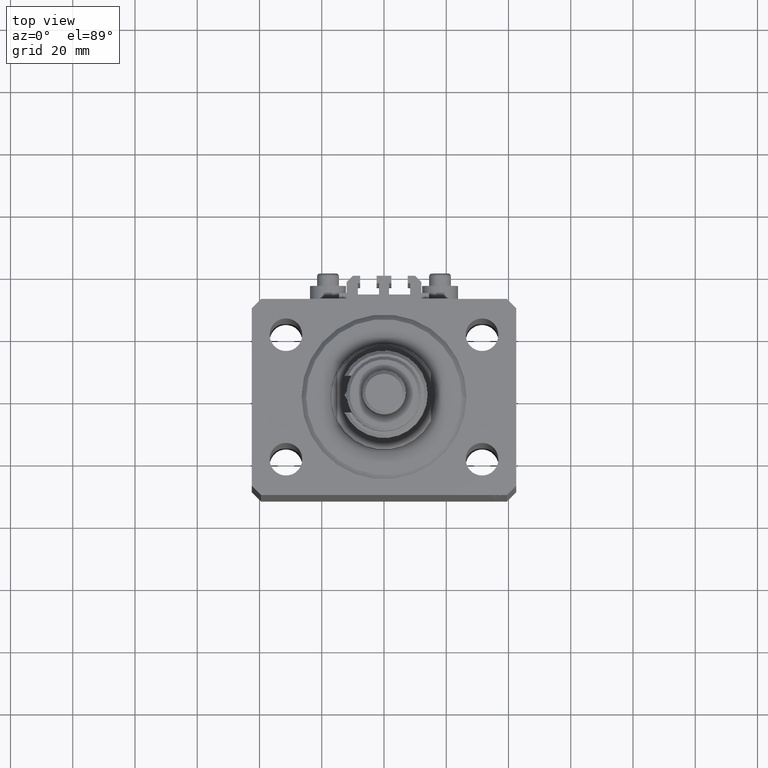
[diagram: clean part render]
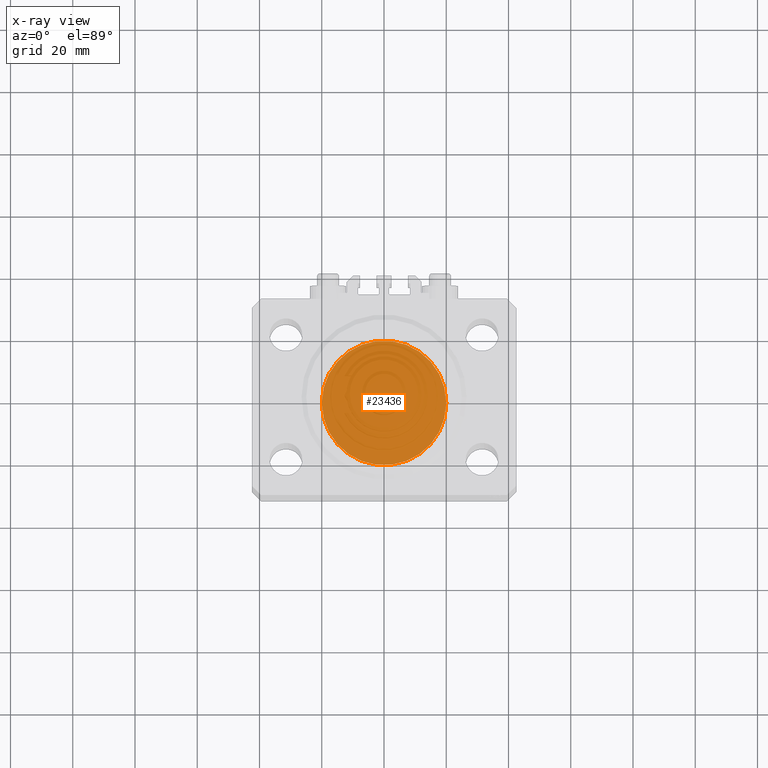
[diagram: x-ray — body ghosted, one internal face saturated and labeled with its STEP entity id]
A machine part, top view, then the same camera in x-ray: the body is ghosted and one INTERNAL B-rep face — a face not visible from any outside direction — is saturated and labeled: STEP entity #23436.
In plain terms, the highlighted planar face has unit normal (0, 0, 1).
Its self-contained STEP definition (entity closure, byte-faithful):
#216 = DIRECTION ( 'NONE',  ( 0.000000000000000000, 0.000000000000000000, 1.000000000000000000 ) ) ;
#1132 = CARTESIAN_POINT ( 'NONE',  ( 20.00000000000000000, 2.449293598294706513E-15, 0.000000000000000000 ) ) ;
#2191 = DIRECTION ( 'NONE',  ( 1.000000000000000000, 0.000000000000000000, 0.000000000000000000 ) ) ;
#2630 = EDGE_CURVE ( 'NONE', #8271, #3992, #7108, .T. ) ;
#3992 = VERTEX_POINT ( 'NONE', #1132 ) ;
#7108 = CIRCLE ( 'NONE', #20056, 20.00000000000000000 ) ;
#7529 = CIRCLE ( 'NONE', #42363, 20.00000000000000000 ) ;
#8271 = VERTEX_POINT ( 'NONE', #8361 ) ;
#8361 = CARTESIAN_POINT ( 'NONE',  ( -20.00000000000000000, 0.000000000000000000, 0.000000000000000000 ) ) ;
#12756 = EDGE_LOOP ( 'NONE', ( #19305, #42932 ) ) ;
#15934 = FACE_OUTER_BOUND ( 'NONE', #12756, .T. ) ;
#16132 = EDGE_CURVE ( 'NONE', #3992, #8271, #7529, .T. ) ;
#17406 = DIRECTION ( 'NONE',  ( 0.000000000000000000, 0.000000000000000000, 1.000000000000000000 ) ) ;
#18188 = DIRECTION ( 'NONE',  ( 0.000000000000000000, 0.000000000000000000, 1.000000000000000000 ) ) ;
#19305 = ORIENTED_EDGE ( 'NONE', *, *, #2630, .F. ) ;
#20056 = AXIS2_PLACEMENT_3D ( 'NONE', #25566, #18188, #37703 ) ;
#23436 = ADVANCED_FACE ( 'NONE', ( #15934 ), #38770, .F. ) ;
#25566 = CARTESIAN_POINT ( 'NONE',  ( 0.000000000000000000, 0.000000000000000000, 0.000000000000000000 ) ) ;
#26631 = CARTESIAN_POINT ( 'NONE',  ( 0.000000000000000000, 0.000000000000000000, 0.000000000000000000 ) ) ;
#28317 = CARTESIAN_POINT ( 'NONE',  ( 0.000000000000000000, 0.000000000000000000, 0.000000000000000000 ) ) ;
#30666 = DIRECTION ( 'NONE',  ( 1.000000000000000000, 0.000000000000000000, -0.000000000000000000 ) ) ;
#37703 = DIRECTION ( 'NONE',  ( 1.000000000000000000, 0.000000000000000000, 0.000000000000000000 ) ) ;
#38770 = PLANE ( 'NONE',  #43499 ) ;
#42363 = AXIS2_PLACEMENT_3D ( 'NONE', #28317, #17406, #2191 ) ;
#42932 = ORIENTED_EDGE ( 'NONE', *, *, #16132, .F. ) ;
#43499 = AXIS2_PLACEMENT_3D ( 'NONE', #26631, #216, #30666 ) ;